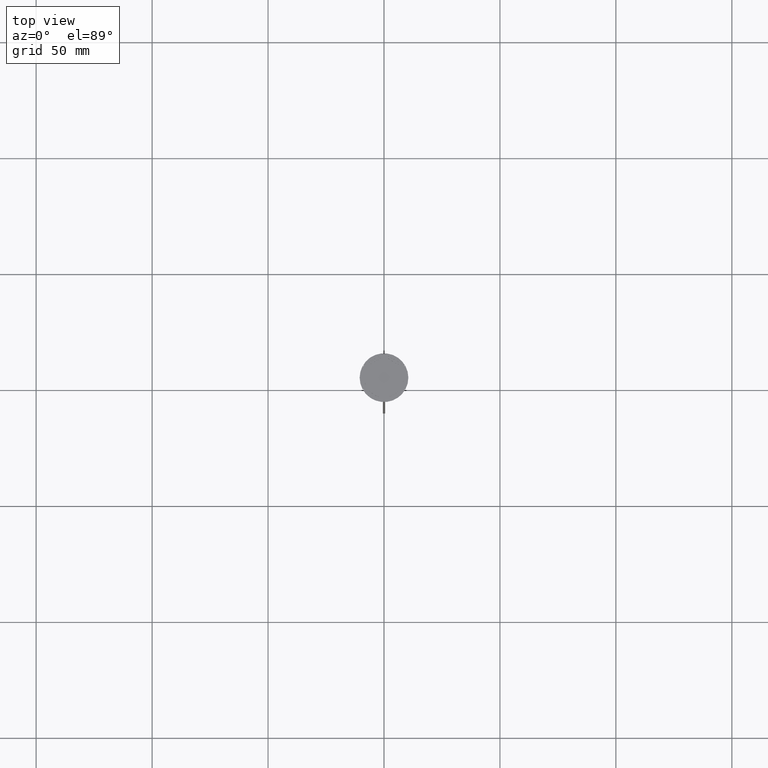
[diagram: clean part render]
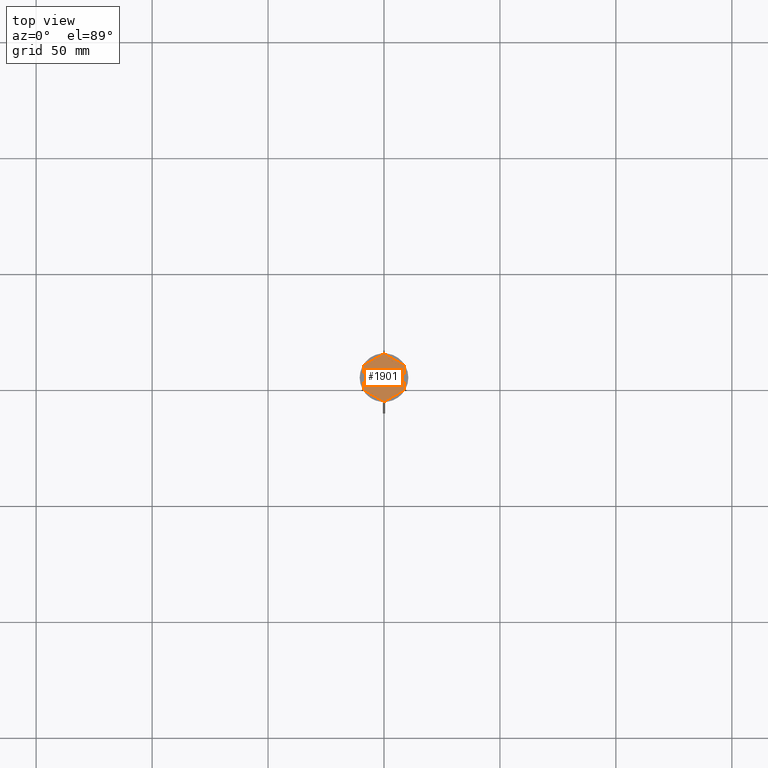
[diagram: same view with one face highlighted and labeled with its STEP entity id]
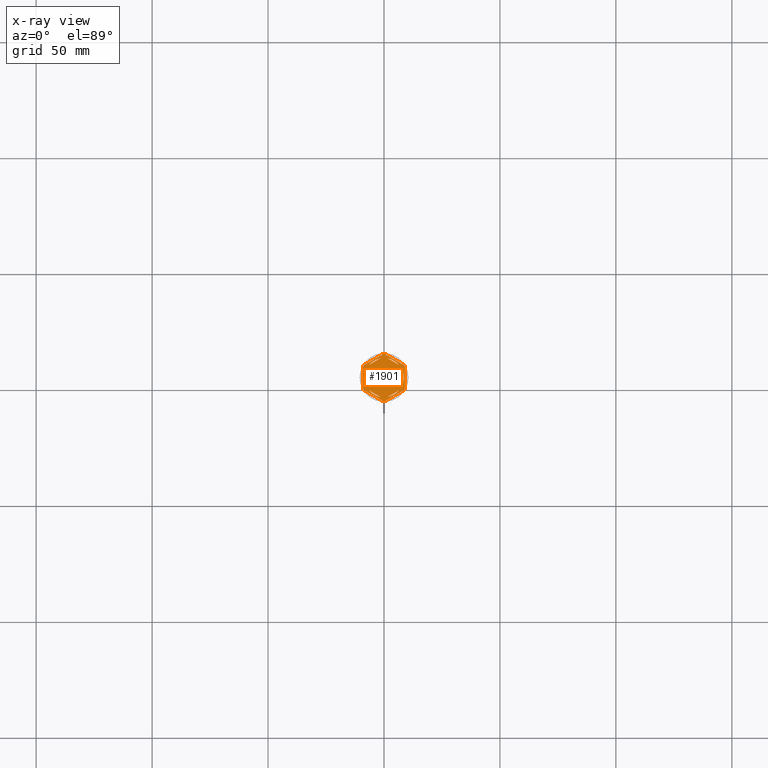
[diagram: x-ray of the same camera — body ghosted, the highlighted face saturated]
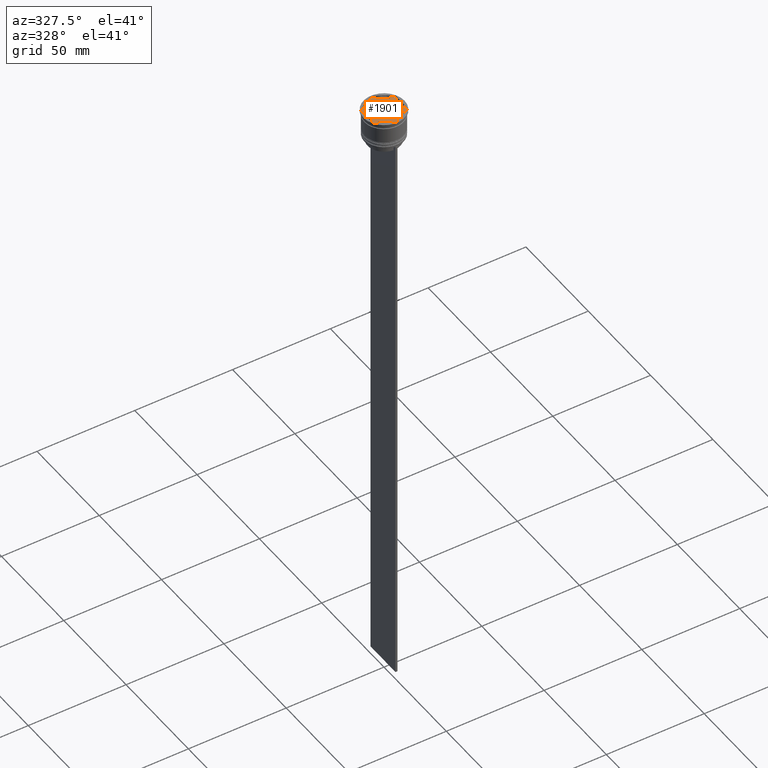
[diagram: same view with one face highlighted and labeled with its STEP entity id]
A machine part, top view. The second image highlights one B-rep face of the part: STEP entity #1901.
The next image is the same camera in x-ray: the body ghosted, the highlighted face saturated — about 0% of this face is hidden behind the body in this view.
A second angle (auxiliary view) of the same face is appended — the face is thin or edge-on in the first view.
In plain terms, the highlighted planar face has unit normal (0, 0, 1).
Its self-contained STEP definition (entity closure, byte-faithful):
#2 = CARTESIAN_POINT ( 'NONE',  ( 0.000000000000000000, 0.000000000000000000, -1.000000000000000000 ) ) ;
#3 = EDGE_CURVE ( 'NONE', #704, #2230, #1062, .T. ) ;
#8 = VERTEX_POINT ( 'NONE', #655 ) ;
#33 = AXIS2_PLACEMENT_3D ( 'NONE', #1124, #1517, #2137 ) ;
#34 = DIRECTION ( 'NONE',  ( 0.8660254037844385966, -0.4999999999999999445, 0.000000000000000000 ) ) ;
#35 = VECTOR ( 'NONE', #101, 1000.000000000000000 ) ;
#44 = CARTESIAN_POINT ( 'NONE',  ( 8.673617379884035472E-16, 9.237604307034013473, -1.000000000000000888 ) ) ;
#88 = EDGE_CURVE ( 'NONE', #1011, #862, #733, .T. ) ;
#90 = VERTEX_POINT ( 'NONE', #2123 ) ;
#99 = CARTESIAN_POINT ( 'NONE',  ( -0.3430780618347059052, 10.19422863405994306, -1.000000000000000000 ) ) ;
#101 = DIRECTION ( 'NONE',  ( 0.000000000000000000, -1.000000000000000000, 0.000000000000000000 ) ) ;
#104 = FACE_BOUND ( 'NONE', #2584, .T. ) ;
#116 = ORIENTED_EDGE ( 'NONE', *, *, #1083, .F. ) ;
#118 = CARTESIAN_POINT ( 'NONE',  ( 0.000000000000000000, 0.000000000000000000, -1.000000000000000000 ) ) ;
#140 = DIRECTION ( 'NONE',  ( -0.000000000000000000, -0.000000000000000000, -1.000000000000000000 ) ) ;
#141 = VERTEX_POINT ( 'NONE', #1395 ) ;
#145 = VERTEX_POINT ( 'NONE', #969 ) ;
#159 = AXIS2_PLACEMENT_3D ( 'NONE', #310, #1134, #789 ) ;
#202 = LINE ( 'NONE', #1211, #1886 ) ;
#204 = DIRECTION ( 'NONE',  ( 0.000000000000000000, 0.000000000000000000, 1.000000000000000000 ) ) ;
#206 = VECTOR ( 'NONE', #687, 1000.000000000000114 ) ;
#212 = EDGE_CURVE ( 'NONE', #1613, #2212, #981, .T. ) ;
#224 = EDGE_CURVE ( 'NONE', #862, #1011, #541, .T. ) ;
#230 = LINE ( 'NONE', #1857, #2318 ) ;
#252 = CIRCLE ( 'NONE', #33, 8.500000000000000000 ) ;
#254 = CIRCLE ( 'NONE', #861, 10.19999999999999574 ) ;
#266 = VERTEX_POINT ( 'NONE', #2021 ) ;
#308 = CARTESIAN_POINT ( 'NONE',  ( 0.000000000000000000, 0.000000000000000000, -1.000000000000000000 ) ) ;
#310 = CARTESIAN_POINT ( 'NONE',  ( 0.000000000000000000, 0.000000000000000000, -1.000000000000000000 ) ) ;
#324 = FACE_BOUND ( 'NONE', #2181, .T. ) ;
#332 = EDGE_CURVE ( 'NONE', #2230, #704, #601, .T. ) ;
#347 = VERTEX_POINT ( 'NONE', #2666 ) ;
#349 = EDGE_CURVE ( 'NONE', #1822, #2089, #230, .T. ) ;
#393 = ORIENTED_EDGE ( 'NONE', *, *, #2141, .F. ) ;
#416 = DIRECTION ( 'NONE',  ( -0.8660254037844387076, -0.4999999999999998335, 0.000000000000000000 ) ) ;
#427 = VECTOR ( 'NONE', #416, 1000.000000000000114 ) ;
#435 = CARTESIAN_POINT ( 'NONE',  ( -8.656921938165295316, -5.394228634059957450, -1.000000000000000000 ) ) ;
#468 = ORIENTED_EDGE ( 'NONE', *, *, #710, .T. ) ;
#488 = CARTESIAN_POINT ( 'NONE',  ( -9.000000000000001776, 4.799999999999988276, -1.000000000000000000 ) ) ;
#500 = DIRECTION ( 'NONE',  ( 1.000000000000000000, 0.000000000000000000, -0.000000000000000000 ) ) ;
#537 = ORIENTED_EDGE ( 'NONE', *, *, #1330, .F. ) ;
#541 = LINE ( 'NONE', #1171, #642 ) ;
#543 = ORIENTED_EDGE ( 'NONE', *, *, #2256, .F. ) ;
#544 = CARTESIAN_POINT ( 'NONE',  ( 0.000000000000000000, 0.000000000000000000, -1.000000000000000000 ) ) ;
#550 = LINE ( 'NONE', #1374, #1236 ) ;
#555 = DIRECTION ( 'NONE',  ( 1.000000000000000000, 0.000000000000000000, 0.000000000000000000 ) ) ;
#565 = LINE ( 'NONE', #2413, #2198 ) ;
#579 = CARTESIAN_POINT ( 'NONE',  ( 0.000000000000000000, 0.000000000000000000, -1.000000000000000000 ) ) ;
#581 = CARTESIAN_POINT ( 'NONE',  ( -1.512531407233451475, 8.364343891910017703, -1.000000000000000888 ) ) ;
#588 = VERTEX_POINT ( 'NONE', #581 ) ;
#591 = CARTESIAN_POINT ( 'NONE',  ( 0.000000000000000000, 0.000000000000000000, -1.000000000000000000 ) ) ;
#601 = CIRCLE ( 'NONE', #2106, 8.500000000000000000 ) ;
#607 = CARTESIAN_POINT ( 'NONE',  ( 0.000000000000000000, 0.000000000000000000, -1.000000000000000000 ) ) ;
#614 = ORIENTED_EDGE ( 'NONE', *, *, #224, .F. ) ;
#625 = ORIENTED_EDGE ( 'NONE', *, *, #652, .F. ) ;
#642 = VECTOR ( 'NONE', #1364, 1000.000000000000114 ) ;
#652 = EDGE_CURVE ( 'NONE', #8, #141, #2408, .T. ) ;
#655 = CARTESIAN_POINT ( 'NONE',  ( 8.656921938165297092, 5.394228634059953897, -1.000000000000000000 ) ) ;
#663 = EDGE_LOOP ( 'NONE', ( #2120, #1786 ) ) ;
#677 = EDGE_CURVE ( 'NONE', #8, #951, #550, .T. ) ;
#678 = CARTESIAN_POINT ( 'NONE',  ( 7.999999999999998224, -4.618802153517008513, -1.000000000000000888 ) ) ;
#686 = AXIS2_PLACEMENT_3D ( 'NONE', #579, #2040, #1616 ) ;
#687 = DIRECTION ( 'NONE',  ( 0.8660254037844384856, 0.5000000000000003331, -0.000000000000000000 ) ) ;
#693 = CARTESIAN_POINT ( 'NONE',  ( 0.000000000000000000, 0.000000000000000000, -1.000000000000000000 ) ) ;
#695 = AXIS2_PLACEMENT_3D ( 'NONE', #693, #2133, #903 ) ;
#698 = DIRECTION ( 'NONE',  ( 1.000000000000000000, 0.000000000000000000, 0.000000000000000000 ) ) ;
#704 = VERTEX_POINT ( 'NONE', #1636 ) ;
#710 = EDGE_CURVE ( 'NONE', #90, #141, #202, .T. ) ;
#730 = ORIENTED_EDGE ( 'NONE', *, *, #2384, .T. ) ;
#733 = CIRCLE ( 'NONE', #1068, 8.500000000000000000 ) ;
#752 = LINE ( 'NONE', #1947, #2024 ) ;
#776 = VERTEX_POINT ( 'NONE', #880 ) ;
#789 = DIRECTION ( 'NONE',  ( 1.000000000000000000, 0.000000000000000000, 0.000000000000000000 ) ) ;
#799 = ORIENTED_EDGE ( 'NONE', *, *, #1932, .F. ) ;
#825 = CARTESIAN_POINT ( 'NONE',  ( 8.000000000000000000, -2.872281323269017417, -1.000000000000000888 ) ) ;
#835 = EDGE_LOOP ( 'NONE', ( #468, #625, #1804, #116, #1896, #837, #730, #537, #1187, #1490, #2586, #1313 ) ) ;
#837 = ORIENTED_EDGE ( 'NONE', *, *, #1672, .F. ) ;
#856 = AXIS2_PLACEMENT_3D ( 'NONE', #544, #1741, #500 ) ;
#861 = AXIS2_PLACEMENT_3D ( 'NONE', #1996, #140, #970 ) ;
#862 = VERTEX_POINT ( 'NONE', #868 ) ;
#863 = CARTESIAN_POINT ( 'NONE',  ( 0.000000000000000000, 0.000000000000000000, -1.000000000000000000 ) ) ;
#868 = CARTESIAN_POINT ( 'NONE',  ( -1.512531407233448366, -8.364343891910017703, -1.000000000000000888 ) ) ;
#876 = DIRECTION ( 'NONE',  ( 1.000000000000000000, 0.000000000000000000, 0.000000000000000000 ) ) ;
#880 = CARTESIAN_POINT ( 'NONE',  ( 0.3430780618347059052, -10.19422863405994306, -1.000000000000000000 ) ) ;
#895 = CIRCLE ( 'NONE', #686, 10.19999999999999574 ) ;
#898 = VECTOR ( 'NONE', #1698, 1000.000000000000000 ) ;
#903 = DIRECTION ( 'NONE',  ( 1.000000000000000000, 0.000000000000000000, 0.000000000000000000 ) ) ;
#909 = EDGE_CURVE ( 'NONE', #145, #2411, #565, .T. ) ;
#938 = CARTESIAN_POINT ( 'NONE',  ( -6.487468592766552078, -5.492062568641001619, -1.000000000000000888 ) ) ;
#942 = VERTEX_POINT ( 'NONE', #1372 ) ;
#949 = AXIS2_PLACEMENT_3D ( 'NONE', #118, #1108, #698 ) ;
#951 = VERTEX_POINT ( 'NONE', #965 ) ;
#965 = CARTESIAN_POINT ( 'NONE',  ( 0.3430780618347050170, 10.19422863405994306, -1.000000000000000000 ) ) ;
#969 = CARTESIAN_POINT ( 'NONE',  ( -8.000000000000000000, -2.872281323269016085, -1.000000000000000888 ) ) ;
#970 = DIRECTION ( 'NONE',  ( 1.000000000000000000, 8.881784197001252323E-16, 0.000000000000000000 ) ) ;
#981 = LINE ( 'NONE', #1525, #1421 ) ;
#1011 = VERTEX_POINT ( 'NONE', #938 ) ;
#1013 = DIRECTION ( 'NONE',  ( 0.000000000000000000, 1.000000000000000000, 0.000000000000000000 ) ) ;
#1022 = AXIS2_PLACEMENT_3D ( 'NONE', #591, #1979, #1966 ) ;
#1039 = CARTESIAN_POINT ( 'NONE',  ( 8.000000000000000000, 4.618802153517006737, -1.000000000000000888 ) ) ;
#1049 = CARTESIAN_POINT ( 'NONE',  ( -8.656921938165297092, 5.394228634059953009, -1.000000000000000000 ) ) ;
#1062 = LINE ( 'NONE', #678, #898 ) ;
#1068 = AXIS2_PLACEMENT_3D ( 'NONE', #2288, #2482, #876 ) ;
#1083 = EDGE_CURVE ( 'NONE', #1613, #951, #895, .T. ) ;
#1104 = CARTESIAN_POINT ( 'NONE',  ( -9.000000000000001776, 5.196152422706632024, -1.000000000000000000 ) ) ;
#1108 = DIRECTION ( 'NONE',  ( 0.000000000000000000, 0.000000000000000000, 1.000000000000000000 ) ) ;
#1124 = CARTESIAN_POINT ( 'NONE',  ( 0.000000000000000000, 0.000000000000000000, -1.000000000000000000 ) ) ;
#1134 = DIRECTION ( 'NONE',  ( -0.000000000000000000, -0.000000000000000000, -1.000000000000000000 ) ) ;
#1147 = FACE_BOUND ( 'NONE', #2592, .T. ) ;
#1171 = CARTESIAN_POINT ( 'NONE',  ( -8.000000000000000000, -4.618802153517006737, -1.000000000000000888 ) ) ;
#1187 = ORIENTED_EDGE ( 'NONE', *, *, #349, .T. ) ;
#1205 = CIRCLE ( 'NONE', #949, 8.500000000000000000 ) ;
#1209 = CIRCLE ( 'NONE', #2460, 8.500000000000000000 ) ;
#1211 = CARTESIAN_POINT ( 'NONE',  ( 9.000000000000001776, -5.196152422706632024, -1.000000000000000000 ) ) ;
#1236 = VECTOR ( 'NONE', #2201, 1000.000000000000227 ) ;
#1256 = DIRECTION ( 'NONE',  ( -0.000000000000000000, -0.000000000000000000, -1.000000000000000000 ) ) ;
#1293 = CIRCLE ( 'NONE', #695, 8.500000000000000000 ) ;
#1294 = VERTEX_POINT ( 'NONE', #1671 ) ;
#1308 = CARTESIAN_POINT ( 'NONE',  ( -8.000000000000000000, 2.872281323269016085, -1.000000000000000888 ) ) ;
#1313 = ORIENTED_EDGE ( 'NONE', *, *, #2576, .F. ) ;
#1330 = EDGE_CURVE ( 'NONE', #1822, #347, #2491, .T. ) ;
#1364 = DIRECTION ( 'NONE',  ( -0.8660254037844385966, 0.4999999999999999445, 0.000000000000000000 ) ) ;
#1372 = CARTESIAN_POINT ( 'NONE',  ( -6.487468592766553854, 5.492062568640999842, -1.000000000000000888 ) ) ;
#1374 = CARTESIAN_POINT ( 'NONE',  ( 9.000000000000001776, 5.196152422706632912, -1.000000000000000000 ) ) ;
#1383 = VERTEX_POINT ( 'NONE', #1934 ) ;
#1395 = CARTESIAN_POINT ( 'NONE',  ( 9.000000000000001776, 4.799999999999988276, -1.000000000000000000 ) ) ;
#1413 = ORIENTED_EDGE ( 'NONE', *, *, #2309, .F. ) ;
#1421 = VECTOR ( 'NONE', #2392, 1000.000000000000000 ) ;
#1447 = LINE ( 'NONE', #2480, #427 ) ;
#1490 = ORIENTED_EDGE ( 'NONE', *, *, #2163, .F. ) ;
#1499 = ORIENTED_EDGE ( 'NONE', *, *, #2512, .F. ) ;
#1517 = DIRECTION ( 'NONE',  ( 0.000000000000000000, 0.000000000000000000, 1.000000000000000000 ) ) ;
#1525 = CARTESIAN_POINT ( 'NONE',  ( 0.000000000000000000, 10.39230484541326582, -1.000000000000000000 ) ) ;
#1528 = FACE_OUTER_BOUND ( 'NONE', #835, .T. ) ;
#1550 = CIRCLE ( 'NONE', #2287, 8.500000000000000000 ) ;
#1552 = DIRECTION ( 'NONE',  ( 0.000000000000000000, 0.000000000000000000, 1.000000000000000000 ) ) ;
#1557 = VERTEX_POINT ( 'NONE', #1649 ) ;
#1562 = ORIENTED_EDGE ( 'NONE', *, *, #1710, .F. ) ;
#1565 = FACE_BOUND ( 'NONE', #2471, .T. ) ;
#1590 = AXIS2_PLACEMENT_3D ( 'NONE', #863, #1256, #1849 ) ;
#1604 = EDGE_LOOP ( 'NONE', ( #2297, #1562 ) ) ;
#1613 = VERTEX_POINT ( 'NONE', #99 ) ;
#1616 = DIRECTION ( 'NONE',  ( 1.000000000000000000, 1.598721155460225418E-14, 0.000000000000000000 ) ) ;
#1636 = CARTESIAN_POINT ( 'NONE',  ( 8.000000000000000000, 2.872281323269014752, -1.000000000000000888 ) ) ;
#1649 = CARTESIAN_POINT ( 'NONE',  ( 8.656921938165297092, -5.394228634059953009, -1.000000000000000000 ) ) ;
#1671 = CARTESIAN_POINT ( 'NONE',  ( 1.512531407233448366, 8.364343891910017703, -1.000000000000000888 ) ) ;
#1672 = EDGE_CURVE ( 'NONE', #1990, #2212, #1936, .T. ) ;
#1674 = VECTOR ( 'NONE', #34, 1000.000000000000114 ) ;
#1698 = DIRECTION ( 'NONE',  ( -1.877893248421449036E-16, -1.000000000000000000, 0.000000000000000000 ) ) ;
#1704 = DIRECTION ( 'NONE',  ( -0.000000000000000000, -0.000000000000000000, -1.000000000000000000 ) ) ;
#1710 = EDGE_CURVE ( 'NONE', #942, #588, #2348, .T. ) ;
#1741 = DIRECTION ( 'NONE',  ( 0.000000000000000000, 0.000000000000000000, 1.000000000000000000 ) ) ;
#1772 = DIRECTION ( 'NONE',  ( 0.8660254037844385966, 0.5000000000000001110, 0.000000000000000000 ) ) ;
#1786 = ORIENTED_EDGE ( 'NONE', *, *, #3, .F. ) ;
#1804 = ORIENTED_EDGE ( 'NONE', *, *, #677, .T. ) ;
#1822 = VERTEX_POINT ( 'NONE', #435 ) ;
#1849 = DIRECTION ( 'NONE',  ( 1.000000000000000000, 0.000000000000000000, 0.000000000000000000 ) ) ;
#1857 = CARTESIAN_POINT ( 'NONE',  ( -9.000000000000001776, -5.196152422706632912, -1.000000000000000000 ) ) ;
#1886 = VECTOR ( 'NONE', #1013, 1000.000000000000000 ) ;
#1895 = CIRCLE ( 'NONE', #1590, 10.19999999999999574 ) ;
#1896 = ORIENTED_EDGE ( 'NONE', *, *, #212, .T. ) ;
#1901 = ADVANCED_FACE ( 'NONE', ( #1147, #2385, #1565, #324, #104, #1971, #1528 ), #2596, .T. ) ;
#1915 = EDGE_CURVE ( 'NONE', #776, #1557, #752, .T. ) ;
#1927 = VERTEX_POINT ( 'NONE', #1959 ) ;
#1932 = EDGE_CURVE ( 'NONE', #1383, #1294, #1205, .T. ) ;
#1934 = CARTESIAN_POINT ( 'NONE',  ( 6.487468592766552078, 5.492062568641001619, -1.000000000000000888 ) ) ;
#1936 = CIRCLE ( 'NONE', #2203, 10.19999999999999574 ) ;
#1947 = CARTESIAN_POINT ( 'NONE',  ( 2.607697573705103160E-15, -10.39230484541326405, -1.000000000000000000 ) ) ;
#1959 = CARTESIAN_POINT ( 'NONE',  ( -8.500000000000000000, 0.000000000000000000, -1.000000000000000000 ) ) ;
#1966 = DIRECTION ( 'NONE',  ( 1.000000000000000000, 0.000000000000000000, 0.000000000000000000 ) ) ;
#1969 = LINE ( 'NONE', #1104, #35 ) ;
#1971 = FACE_BOUND ( 'NONE', #1604, .T. ) ;
#1979 = DIRECTION ( 'NONE',  ( -0.000000000000000000, -0.000000000000000000, -1.000000000000000000 ) ) ;
#1990 = VERTEX_POINT ( 'NONE', #488 ) ;
#1995 = EDGE_CURVE ( 'NONE', #588, #942, #252, .T. ) ;
#1996 = CARTESIAN_POINT ( 'NONE',  ( 0.000000000000000000, 0.000000000000000000, -1.000000000000000000 ) ) ;
#2021 = CARTESIAN_POINT ( 'NONE',  ( 6.487468592766547637, -5.492062568641006060, -1.000000000000000888 ) ) ;
#2024 = VECTOR ( 'NONE', #1772, 1000.000000000000000 ) ;
#2040 = DIRECTION ( 'NONE',  ( -0.000000000000000000, -0.000000000000000000, -1.000000000000000000 ) ) ;
#2089 = VERTEX_POINT ( 'NONE', #2210 ) ;
#2106 = AXIS2_PLACEMENT_3D ( 'NONE', #2, #2268, #2259 ) ;
#2120 = ORIENTED_EDGE ( 'NONE', *, *, #332, .F. ) ;
#2123 = CARTESIAN_POINT ( 'NONE',  ( 9.000000000000001776, -4.799999999999988276, -1.000000000000000000 ) ) ;
#2133 = DIRECTION ( 'NONE',  ( 0.000000000000000000, 0.000000000000000000, 1.000000000000000000 ) ) ;
#2137 = DIRECTION ( 'NONE',  ( 1.000000000000000000, 0.000000000000000000, 0.000000000000000000 ) ) ;
#2141 = EDGE_CURVE ( 'NONE', #1294, #1383, #2655, .T. ) ;
#2147 = CARTESIAN_POINT ( 'NONE',  ( 1.512531407233452363, -8.364343891910017703, -1.000000000000000888 ) ) ;
#2158 = ORIENTED_EDGE ( 'NONE', *, *, #2431, .F. ) ;
#2163 = EDGE_CURVE ( 'NONE', #776, #2089, #1895, .T. ) ;
#2181 = EDGE_LOOP ( 'NONE', ( #2570, #614 ) ) ;
#2196 = ORIENTED_EDGE ( 'NONE', *, *, #909, .F. ) ;
#2198 = VECTOR ( 'NONE', #2571, 1000.000000000000000 ) ;
#2201 = DIRECTION ( 'NONE',  ( -0.8660254037844385966, 0.5000000000000000000, 0.000000000000000000 ) ) ;
#2203 = AXIS2_PLACEMENT_3D ( 'NONE', #2305, #1704, #2550 ) ;
#2210 = CARTESIAN_POINT ( 'NONE',  ( -0.3430780618347024080, -10.19422863405994306, -1.000000000000000000 ) ) ;
#2212 = VERTEX_POINT ( 'NONE', #1049 ) ;
#2230 = VERTEX_POINT ( 'NONE', #825 ) ;
#2256 = EDGE_CURVE ( 'NONE', #266, #2326, #1447, .T. ) ;
#2259 = DIRECTION ( 'NONE',  ( 1.000000000000000000, 0.000000000000000000, 0.000000000000000000 ) ) ;
#2268 = DIRECTION ( 'NONE',  ( 0.000000000000000000, 0.000000000000000000, 1.000000000000000000 ) ) ;
#2287 = AXIS2_PLACEMENT_3D ( 'NONE', #607, #204, #555 ) ;
#2288 = CARTESIAN_POINT ( 'NONE',  ( 0.000000000000000000, 0.000000000000000000, -1.000000000000000000 ) ) ;
#2297 = ORIENTED_EDGE ( 'NONE', *, *, #1995, .F. ) ;
#2305 = CARTESIAN_POINT ( 'NONE',  ( 0.000000000000000000, 0.000000000000000000, -1.000000000000000000 ) ) ;
#2309 = EDGE_CURVE ( 'NONE', #2326, #266, #1209, .T. ) ;
#2318 = VECTOR ( 'NONE', #2506, 1000.000000000000114 ) ;
#2326 = VERTEX_POINT ( 'NONE', #2147 ) ;
#2348 = LINE ( 'NONE', #44, #206 ) ;
#2384 = EDGE_CURVE ( 'NONE', #1990, #347, #1969, .T. ) ;
#2385 = FACE_BOUND ( 'NONE', #663, .T. ) ;
#2392 = DIRECTION ( 'NONE',  ( -0.8660254037844385966, -0.5000000000000001110, 0.000000000000000000 ) ) ;
#2408 = CIRCLE ( 'NONE', #1022, 10.19999999999999574 ) ;
#2411 = VERTEX_POINT ( 'NONE', #1308 ) ;
#2413 = CARTESIAN_POINT ( 'NONE',  ( -8.000000000000000000, 4.618802153517004072, -1.000000000000000888 ) ) ;
#2431 = EDGE_CURVE ( 'NONE', #1927, #145, #1293, .T. ) ;
#2460 = AXIS2_PLACEMENT_3D ( 'NONE', #308, #1552, #2563 ) ;
#2471 = EDGE_LOOP ( 'NONE', ( #1413, #543 ) ) ;
#2480 = CARTESIAN_POINT ( 'NONE',  ( -8.673617379884035472E-16, -9.237604307034013473, -1.000000000000000888 ) ) ;
#2482 = DIRECTION ( 'NONE',  ( 0.000000000000000000, 0.000000000000000000, 1.000000000000000000 ) ) ;
#2491 = CIRCLE ( 'NONE', #159, 10.19999999999999574 ) ;
#2506 = DIRECTION ( 'NONE',  ( 0.8660254037844387076, -0.4999999999999997224, 0.000000000000000000 ) ) ;
#2512 = EDGE_CURVE ( 'NONE', #2411, #1927, #1550, .T. ) ;
#2550 = DIRECTION ( 'NONE',  ( 1.000000000000000000, 0.000000000000000000, 0.000000000000000000 ) ) ;
#2563 = DIRECTION ( 'NONE',  ( 1.000000000000000000, 0.000000000000000000, 0.000000000000000000 ) ) ;
#2570 = ORIENTED_EDGE ( 'NONE', *, *, #88, .F. ) ;
#2571 = DIRECTION ( 'NONE',  ( 0.000000000000000000, 1.000000000000000000, 0.000000000000000000 ) ) ;
#2576 = EDGE_CURVE ( 'NONE', #90, #1557, #254, .T. ) ;
#2584 = EDGE_LOOP ( 'NONE', ( #1499, #2196, #2158 ) ) ;
#2586 = ORIENTED_EDGE ( 'NONE', *, *, #1915, .T. ) ;
#2592 = EDGE_LOOP ( 'NONE', ( #799, #393 ) ) ;
#2596 = PLANE ( 'NONE',  #856 ) ;
#2655 = LINE ( 'NONE', #1039, #1674 ) ;
#2666 = CARTESIAN_POINT ( 'NONE',  ( -9.000000000000001776, -4.799999999999988276, -1.000000000000000000 ) ) ;